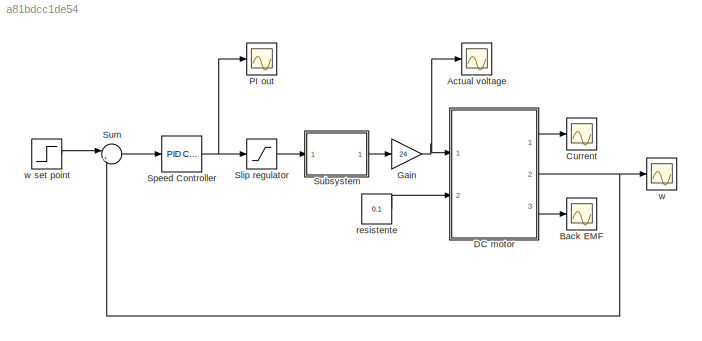
MODEL slx_a81bdcc1de54
KIND model
CONFIG AbsTol = auto
CONFIG EnableMultiTasking = off
CONFIG FixedStep = auto
CONFIG MaxStep = auto
CONFIG MinStep = auto
CONFIG RelTol = 1e-3
CONFIG SampleTimeConstraint = Unconstrained
CONFIG SolverName = VariableStepAuto
CONFIG StartTime = 0.0
CONFIG StopTime = 5
BLOCK [Scope] Actual voltage
  Floating = off
  NumInputPorts = 1
  Ports = [1]
  ScopeSpecificationString = Simulink.scopes.TimeScopeBlockCfg('CurrentConfiguration', extmgr.ConfigurationSet(extmgr.Configuration('Core','General UI',true),extmgr.Configuration('Core','Source UI',true),extmgr.Configuration('Sources','WiredSimulink',true,'DataLoggingVariableName','ScopeData1'),extmgr.Configuration('Visuals','Time Domain',true,'SerializedDisplays',{struct('MinYLimReal','-3.00000','MaxYLimReal','27.00000','YLa...<+1527ch>
BLOCK [Scope] Back EMF
  Floating = off
  NumInputPorts = 1
  Ports = [1]
  ScopeSpecificationString = Simulink.scopes.TimeScopeBlockCfg('CurrentConfiguration', extmgr.ConfigurationSet(extmgr.Configuration('Core','General UI',true),extmgr.Configuration('Core','Source UI',true),extmgr.Configuration('Sources','WiredSimulink',true,'DataLoggingVariableName','ScopeData2'),extmgr.Configuration('Visuals','Time Domain',true,'SerializedDisplays',{struct('MinYLimReal','-6.18679','MaxYLimReal','55.68108','YLa...<+1421ch>
BLOCK [Scope] Current
  Floating = off
  NumInputPorts = 1
  Ports = [1]
  ScopeSpecificationString = Simulink.scopes.TimeScopeBlockCfg('CurrentConfiguration', extmgr.ConfigurationSet(extmgr.Configuration('Core','General UI',true),extmgr.Configuration('Core','Source UI',true),extmgr.Configuration('Sources','WiredSimulink',true),extmgr.Configuration('Visuals','Time Domain',true,'SerializedDisplays',{struct('MinYLimReal','-1.69447','MaxYLimReal','5.04648','YLabelReal','','MinYLimMag','0.00000','MaxY...<+1490ch>
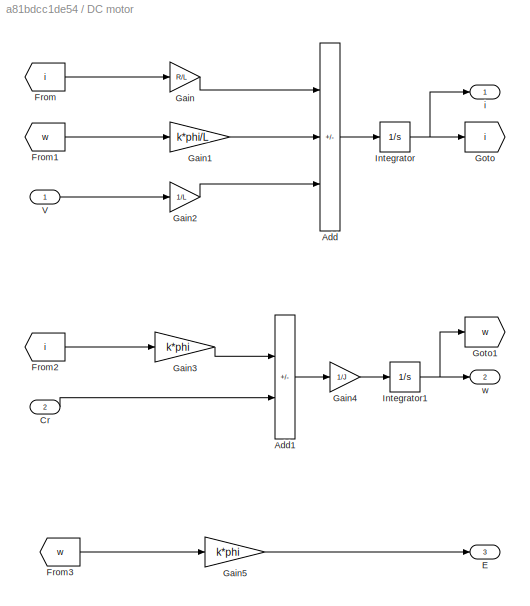
BLOCK [SubSystem] DC motor
  Ports = [2, 3]
BLOCK [Sum] DC motor/Add
  IconShape = rectangular
  Inputs = --+
  Ports = [3, 1]
BLOCK [Sum] DC motor/Add1
  IconShape = rectangular
  Inputs = +-
  Ports = [2, 1]
BLOCK [Inport] DC motor/Cr
  Port = 2
BLOCK [Outport] DC motor/E
  Port = 3
BLOCK [From] DC motor/From
  GotoTag = i
BLOCK [From] DC motor/From1
  GotoTag = w
BLOCK [From] DC motor/From2
  GotoTag = i
BLOCK [From] DC motor/From3
  GotoTag = w
BLOCK [Gain] DC motor/Gain
  Gain = R/L
BLOCK [Gain] DC motor/Gain1
  Gain = k*phi/L
BLOCK [Gain] DC motor/Gain2
  Gain = 1/L
BLOCK [Gain] DC motor/Gain3
  Gain = k*phi
BLOCK [Gain] DC motor/Gain4
  Gain = 1/J
BLOCK [Gain] DC motor/Gain5
  Gain = k*phi
BLOCK [Goto] DC motor/Goto
  GotoTag = i
BLOCK [Goto] DC motor/Goto1
  GotoTag = w
BLOCK [Integrator] DC motor/Integrator
  Ports = [1, 1]
BLOCK [Integrator] DC motor/Integrator1
  Ports = [1, 1]
BLOCK [Inport] DC motor/V
BLOCK [Outport] DC motor/i
BLOCK [Outport] DC motor/w
  Port = 2
BLOCK [Gain] Gain
  Gain = 24
BLOCK [Scope] PI out
  Floating = off
  NumInputPorts = 1
  Ports = [1]
  ScopeSpecificationString = Simulink.scopes.TimeScopeBlockCfg('CurrentConfiguration', extmgr.ConfigurationSet(extmgr.Configuration('Core','General UI',true),extmgr.Configuration('Core','Source UI',true),extmgr.Configuration('Sources','WiredSimulink',true,'DataLoggingVariableName','ScopeData2'),extmgr.Configuration('Visuals','Time Domain',true,'SerializedDisplays',{struct('MinYLimReal','-80.84869','MaxYLimReal','64.54067','YL...<+1448ch>
BLOCK [Saturate] Slip regulator
  LowerLimit = 0
  UpperLimit = 2
BLOCK [Reference] Speed Controller  REF=slpidlib/PID Controller
  Ports = [1, 1]
  SourceBlock = slpidlib/PID Controller
  SourceType = PID 1dof
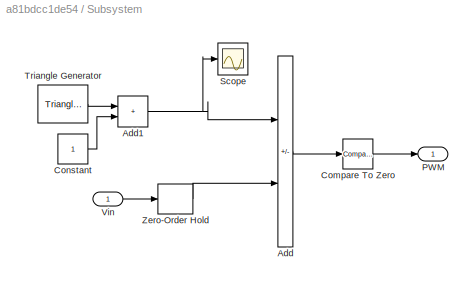
BLOCK [SubSystem] Subsystem
  Ports = [1, 1]
BLOCK [Sum] Subsystem/Add
  IconShape = rectangular
  Inputs = +-
  Ports = [2, 1]
BLOCK [Sum] Subsystem/Add1
  IconShape = rectangular
  Ports = [2, 1]
BLOCK [Reference] Subsystem/Compare To Zero  REF=simulink/Logic and Bit
Operations/Compare
To Zero
  Ports = [1, 1]
  SourceBlock = simulink/Logic and Bit\nOperations/Compare\nTo Zero
  SourceType = Compare To Zero
BLOCK [Constant] Subsystem/Constant
BLOCK [Outport] Subsystem/PWM
BLOCK [Scope] Subsystem/Scope
  Floating = off
  NumInputPorts = 1
  Ports = [1]
  ScopeSpecificationString = Simulink.scopes.TimeScopeBlockCfg('CurrentConfiguration', extmgr.ConfigurationSet(extmgr.Configuration('Core','General UI',true),extmgr.Configuration('Core','Source UI',true),extmgr.Configuration('Sources','WiredSimulink',true,'DataLoggingVariableName','ScopeData1'),extmgr.Configuration('Visuals','Time Domain',true,'SerializedDisplays',{struct('MinYLimReal','-0.25','MaxYLimReal','2.25','YLabelReal...<+1345ch>
BLOCK [Reference] Subsystem/Triangle Generator  REF=spsTriangleGeneratorLib/Triangle
Generator
  LibrarySourceBlock = sps_lib/Sources/Signal Generator Sources/Triangle\nGenerator
  NameLocation = top
  Ports = [0, 1]
  SourceBlock = spsTriangleGeneratorLib/Triangle\nGenerator
  SourceType = Triangle Generator
BLOCK [Inport] Subsystem/Vin
BLOCK [ZeroOrderHold] Subsystem/Zero-Order Hold
  SampleTime = -1
BLOCK [Sum] Sum
  Inputs = |+-
  Ports = [2, 1]
BLOCK [Constant] resistente
  Value = 0.1
BLOCK [Scope] w
  Floating = off
  NumInputPorts = 1
  Ports = [1]
  ScopeSpecificationString = Simulink.scopes.TimeScopeBlockCfg('CurrentConfiguration', extmgr.ConfigurationSet(extmgr.Configuration('Core','General UI',true),extmgr.Configuration('Core','Source UI',true),extmgr.Configuration('Sources','WiredSimulink',true,'DataLoggingVariableName','ScopeData1'),extmgr.Configuration('Visuals','Time Domain',true,'SerializedDisplays',{struct('MinYLimReal','-1.65452','MaxYLimReal','14.89062','YLa...<+1533ch>
BLOCK [Step] w set point
  After = 5
  Before = 10
  SampleTime = 0
  Time = 20
LINE DC motor/Add1:1 -> DC motor/Gain4:1
LINE DC motor/Add:1 -> DC motor/Integrator:1
LINE DC motor/Cr:1 -> DC motor/Add1:2
LINE DC motor/From1:1 -> DC motor/Gain1:1
LINE DC motor/From2:1 -> DC motor/Gain3:1
LINE DC motor/From3:1 -> DC motor/Gain5:1
LINE DC motor/From:1 -> DC motor/Gain:1
LINE DC motor/Gain1:1 -> DC motor/Add:2
LINE DC motor/Gain2:1 -> DC motor/Add:3
LINE DC motor/Gain3:1 -> DC motor/Add1:1
LINE DC motor/Gain4:1 -> DC motor/Integrator1:1
LINE DC motor/Gain5:1 -> DC motor/E:1
LINE DC motor/Gain:1 -> DC motor/Add:1
NET DC motor/Integrator1:1 -> DC motor/Goto1:1, DC motor/w:1
NET DC motor/Integrator:1 -> DC motor/Goto:1, DC motor/i:1
LINE DC motor/V:1 -> DC motor/Gain2:1
LINE DC motor:1 -> Current:1
NET DC motor:2 -> Sum:2, w:1
LINE DC motor:3 -> Back EMF:1
NET Gain:1 -> Actual voltage:1, DC motor:1
LINE Slip regulator:1 -> Subsystem:1
NET Speed Controller:1 -> PI out:1, Slip regulator:1
NET Subsystem/Add1:1 -> Subsystem/Add:1, Subsystem/Scope:1
LINE Subsystem/Add:1 -> Subsystem/Compare To Zero:1
LINE Subsystem/Compare To Zero:1 -> Subsystem/PWM:1
LINE Subsystem/Constant:1 -> Subsystem/Add1:2
LINE Subsystem/Triangle Generator:1 -> Subsystem/Add1:1
LINE Subsystem/Vin:1 -> Subsystem/Zero-Order Hold:1
LINE Subsystem/Zero-Order Hold:1 -> Subsystem/Add:2
LINE Subsystem:1 -> Gain:1
LINE Sum:1 -> Speed Controller:1
LINE resistente:1 -> DC motor:2
LINE w set point:1 -> Sum:1
note: NET lines group one-source signal fan-out (src -> all destinations, sorted); 1:1 wires keep LINE
